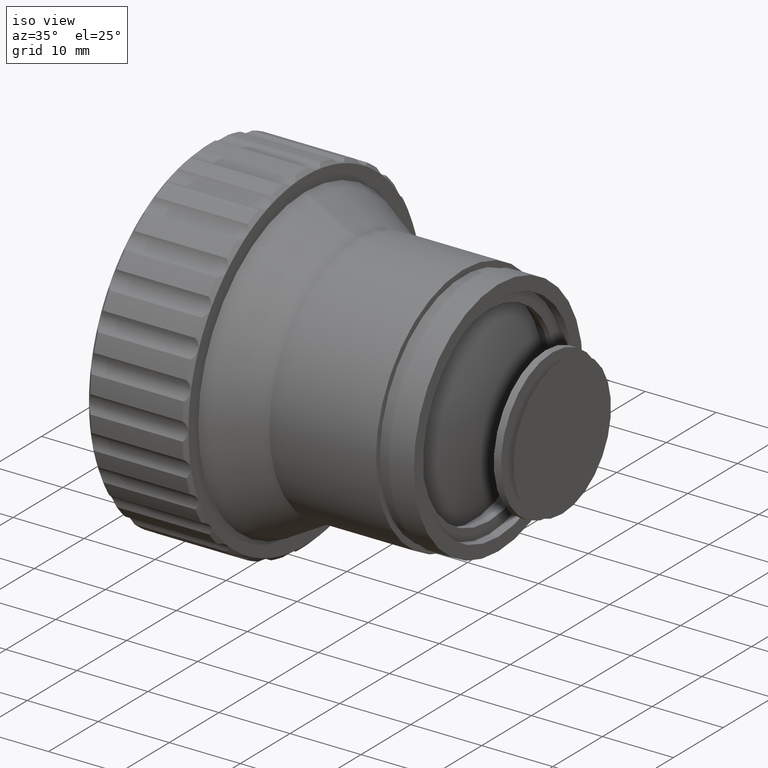
[diagram: clean part render]
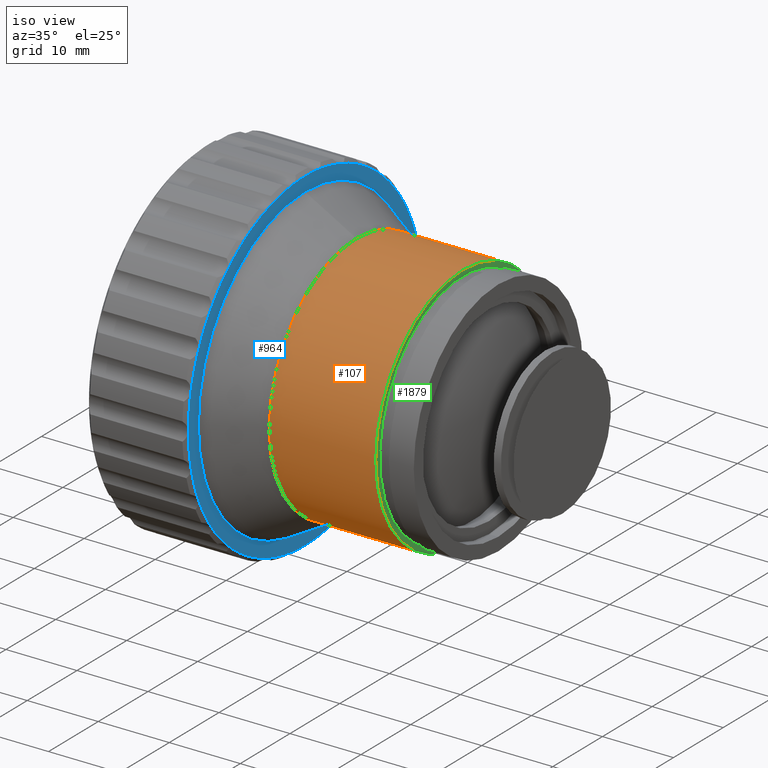
[diagram: same view with three faces highlighted in distinct colors, each labeled with its STEP entity id]
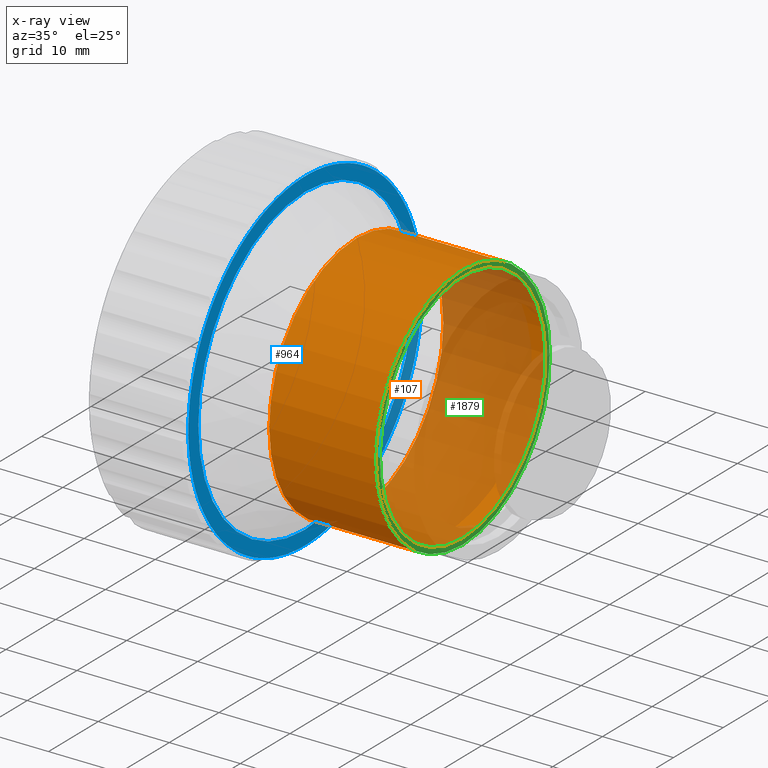
[diagram: x-ray of the same camera — body ghosted, the three highlighted faces saturated]
A machine part, iso view with three faces highlighted in distinct colors.
The next image is the same camera in x-ray (body ghosted, the three faces saturated) — at least one of them is partly hidden behind the body in this view.
Their STEP definitions:

[orange] entity #107 — the highlighted cylindrical surface (bore or boss wall) has radius 17.5 mm, axis along (1, 0, 0).
#48 = DIRECTION ( 'NONE',  ( 0.000000000000000000, 0.000000000000000000, -1.000000000000000000 ) ) ;
#107 = ADVANCED_FACE ( 'NONE', ( #3614, #2193 ), #2216, .T. ) ;
#308 = ORIENTED_EDGE ( 'NONE', *, *, #2126, .T. ) ;
#545 = CARTESIAN_POINT ( 'NONE',  ( 36.33008000000000948, 0.000000000000000000, -17.49999999999999645 ) ) ;
#895 = EDGE_CURVE ( 'NONE', #2814, #2814, #1130, .T. ) ;
#932 = CIRCLE ( 'NONE', #4761, 17.49999999999999645 ) ;
#1130 = CIRCLE ( 'NONE', #3785, 17.49999999999999645 ) ;
#1219 = EDGE_LOOP ( 'NONE', ( #2340 ) ) ;
#1438 = DIRECTION ( 'NONE',  ( 0.000000000000000000, 0.000000000000000000, -1.000000000000000000 ) ) ;
#2126 = EDGE_CURVE ( 'NONE', #3839, #3839, #932, .T. ) ;
#2193 = FACE_OUTER_BOUND ( 'NONE', #3341, .T. ) ;
#2216 = CYLINDRICAL_SURFACE ( 'NONE', #3313, 17.49999999999999645 ) ;
#2340 = ORIENTED_EDGE ( 'NONE', *, *, #895, .T. ) ;
#2766 = CARTESIAN_POINT ( 'NONE',  ( 21.33008000000000948, 0.000000000000000000, -17.49999999999999645 ) ) ;
#2814 = VERTEX_POINT ( 'NONE', #545 ) ;
#2954 = CARTESIAN_POINT ( 'NONE',  ( 0.000000000000000000, 0.000000000000000000, 0.000000000000000000 ) ) ;
#3313 = AXIS2_PLACEMENT_3D ( 'NONE', #2954, #4374, #1438 ) ;
#3341 = EDGE_LOOP ( 'NONE', ( #308 ) ) ;
#3614 = FACE_OUTER_BOUND ( 'NONE', #1219, .T. ) ;
#3678 = DIRECTION ( 'NONE',  ( 1.000000000000000000, 0.000000000000000000, 0.000000000000000000 ) ) ;
#3785 = AXIS2_PLACEMENT_3D ( 'NONE', #4194, #3810, #4273 ) ;
#3810 = DIRECTION ( 'NONE',  ( -1.000000000000000000, -0.000000000000000000, -0.000000000000000000 ) ) ;
#3839 = VERTEX_POINT ( 'NONE', #2766 ) ;
#4194 = CARTESIAN_POINT ( 'NONE',  ( 36.33008000000000948, 0.000000000000000000, 0.000000000000000000 ) ) ;
#4273 = DIRECTION ( 'NONE',  ( 0.000000000000000000, 0.000000000000000000, -1.000000000000000000 ) ) ;
#4374 = DIRECTION ( 'NONE',  ( 1.000000000000000000, 0.000000000000000000, 0.000000000000000000 ) ) ;
#4485 = CARTESIAN_POINT ( 'NONE',  ( 21.33008000000000948, 0.000000000000000000, 0.000000000000000000 ) ) ;
#4761 = AXIS2_PLACEMENT_3D ( 'NONE', #4485, #3678, #48 ) ;

[blue] entity #964 — the highlighted planar face has unit normal (1, -0, 0).
#14 = CIRCLE ( 'NONE', #1707, 23.49999999999999645 ) ;
#44 = AXIS2_PLACEMENT_3D ( 'NONE', #3885, #4514, #2637 ) ;
#81 = CARTESIAN_POINT ( 'NONE',  ( 14.14115099999998293, 0.000000000000000000, 0.000000000000000000 ) ) ;
#85 = CARTESIAN_POINT ( 'NONE',  ( 14.14115099999999003, 0.000000000000000000, 0.000000000000000000 ) ) ;
#124 = AXIS2_PLACEMENT_3D ( 'NONE', #1446, #2941, #836 ) ;
#129 = EDGE_CURVE ( 'NONE', #1919, #3581, #1656, .T. ) ;
#161 = AXIS2_PLACEMENT_3D ( 'NONE', #1409, #2952, #4447 ) ;
#165 = CARTESIAN_POINT ( 'NONE',  ( 14.14115099999999003, 7.261899367811205153, -22.34982813293612125 ) ) ;
#170 = DIRECTION ( 'NONE',  ( 1.000000000000000000, -0.000000000000000000, -0.000000000000000000 ) ) ;
#301 = DIRECTION ( 'NONE',  ( 1.000000000000000000, -0.000000000000000000, -0.000000000000000000 ) ) ;
#304 = EDGE_CURVE ( 'NONE', #2469, #4337, #3073, .T. ) ;
#328 = DIRECTION ( 'NONE',  ( 0.000000000000000000, 0.000000000000000000, 1.000000000000000000 ) ) ;
#339 = VERTEX_POINT ( 'NONE', #2159 ) ;
#380 = DIRECTION ( 'NONE',  ( 0.000000000000000000, 0.000000000000000000, 1.000000000000000000 ) ) ;
#489 = ORIENTED_EDGE ( 'NONE', *, *, #1831, .T. ) ;
#494 = VERTEX_POINT ( 'NONE', #1994 ) ;
#509 = EDGE_CURVE ( 'NONE', #1267, #652, #1437, .T. ) ;
#527 = DIRECTION ( 'NONE',  ( 1.000000000000000000, -0.000000000000000000, -0.000000000000000000 ) ) ;
#528 = ORIENTED_EDGE ( 'NONE', *, *, #1527, .T. ) ;
#537 = CIRCLE ( 'NONE', #2800, 23.49999999999999289 ) ;
#606 = EDGE_CURVE ( 'NONE', #1497, #494, #3629, .T. ) ;
#624 = AXIS2_PLACEMENT_3D ( 'NONE', #978, #948, #4268 ) ;
#629 = DIRECTION ( 'NONE',  ( 0.000000000000000000, 0.000000000000000000, 1.000000000000000000 ) ) ;
#644 = CIRCLE ( 'NONE', #4468, 23.49999999999999645 ) ;
#652 = VERTEX_POINT ( 'NONE', #4541 ) ;
#655 = DIRECTION ( 'NONE',  ( 0.000000000000000000, 0.000000000000000000, 1.000000000000000000 ) ) ;
#667 = AXIS2_PLACEMENT_3D ( 'NONE', #1775, #1457, #328 ) ;
#677 = VERTEX_POINT ( 'NONE', #1511 ) ;
#706 = AXIS2_PLACEMENT_3D ( 'NONE', #4631, #3556, #2077 ) ;
#761 = EDGE_CURVE ( 'NONE', #3039, #3211, #4245, .T. ) ;
#784 = CARTESIAN_POINT ( 'NONE',  ( 14.14115099999999003, -21.46831825460104426, 9.558311112281463906 ) ) ;
#836 = DIRECTION ( 'NONE',  ( 0.000000000000000000, 0.000000000000000000, 1.000000000000000000 ) ) ;
#917 = DIRECTION ( 'NONE',  ( 0.000000000000000000, 0.000000000000000000, 1.000000000000000000 ) ) ;
#918 = ORIENTED_EDGE ( 'NONE', *, *, #3913, .T. ) ;
#948 = DIRECTION ( 'NONE',  ( 1.000000000000000000, -0.000000000000000000, -0.000000000000000000 ) ) ;
#964 = ADVANCED_FACE ( 'NONE', ( #1411, #3664 ), #2141, .T. ) ;
#972 = AXIS2_PLACEMENT_3D ( 'NONE', #1422, #4405, #1060 ) ;
#976 = AXIS2_PLACEMENT_3D ( 'NONE', #3572, #3284, #4700 ) ;
#978 = CARTESIAN_POINT ( 'NONE',  ( 14.14115099999999003, 0.000000000000000000, 0.000000000000000000 ) ) ;
#1002 = EDGE_CURVE ( 'NONE', #2022, #2087, #4237, .T. ) ;
#1016 = VERTEX_POINT ( 'NONE', #1339 ) ;
#1023 = DIRECTION ( 'NONE',  ( 0.000000000000000000, 5.329070518200751394E-15, 1.000000000000000000 ) ) ;
#1050 = CIRCLE ( 'NONE', #2847, 23.49999999999999289 ) ;
#1060 = DIRECTION ( 'NONE',  ( 0.000000000000000000, 1.776356839400250465E-15, 1.000000000000000000 ) ) ;
#1115 = EDGE_CURVE ( 'NONE', #494, #1679, #3071, .T. ) ;
#1123 = AXIS2_PLACEMENT_3D ( 'NONE', #3997, #2079, #655 ) ;
#1143 = CARTESIAN_POINT ( 'NONE',  ( 14.14115099999998648, -22.98646861724439106, 4.885924734217509169 ) ) ;
#1146 = CARTESIAN_POINT ( 'NONE',  ( 14.14115099999998471, 0.000000000000000000, 0.000000000000000000 ) ) ;
#1147 = DIRECTION ( 'NONE',  ( 0.000000000000000000, 6.217248937900876626E-15, 1.000000000000000000 ) ) ;
#1151 = CARTESIAN_POINT ( 'NONE',  ( 14.14115099999999714, 0.000000000000000000, 0.000000000000000000 ) ) ;
#1207 = CARTESIAN_POINT ( 'NONE',  ( 14.14115099999998648, 11.74999999999995381, -20.35159698893432889 ) ) ;
#1229 = DIRECTION ( 'NONE',  ( 0.000000000000000000, 0.000000000000000000, 1.000000000000000000 ) ) ;
#1230 = ORIENTED_EDGE ( 'NONE', *, *, #304, .T. ) ;
#1243 = VERTEX_POINT ( 'NONE', #1587 ) ;
#1255 = EDGE_CURVE ( 'NONE', #652, #2226, #1813, .T. ) ;
#1259 = VERTEX_POINT ( 'NONE', #3628 ) ;
#1267 = VERTEX_POINT ( 'NONE', #4036 ) ;
#1271 = AXIS2_PLACEMENT_3D ( 'NONE', #3265, #2526, #4063 ) ;
#1277 = AXIS2_PLACEMENT_3D ( 'NONE', #4703, #4728, #2396 ) ;
#1299 = AXIS2_PLACEMENT_3D ( 'NONE', #1318, #3156, #2017 ) ;
#1314 = VERTEX_POINT ( 'NONE', #2894 ) ;
#1318 = CARTESIAN_POINT ( 'NONE',  ( 14.14115099999998648, 0.000000000000000000, 0.000000000000000000 ) ) ;
#1333 = CARTESIAN_POINT ( 'NONE',  ( 14.14115099999998826, 0.000000000000000000, 0.000000000000000000 ) ) ;
#1339 = CARTESIAN_POINT ( 'NONE',  ( 14.14115099999998648, 2.456418886789781375, -23.37126454115442797 ) ) ;
#1373 = ORIENTED_EDGE ( 'NONE', *, *, #1960, .T. ) ;
#1376 = EDGE_CURVE ( 'NONE', #1243, #1243, #2833, .T. ) ;
#1401 = AXIS2_PLACEMENT_3D ( 'NONE', #2002, #170, #3219 ) ;
#1409 = CARTESIAN_POINT ( 'NONE',  ( 14.14115099999998826, 0.000000000000000000, 0.000000000000000000 ) ) ;
#1411 = FACE_BOUND ( 'NONE', #2170, .T. ) ;
#1416 = CARTESIAN_POINT ( 'NONE',  ( 14.14115099999999003, 15.72456924943337064, 17.46390339871857122 ) ) ;
#1422 = CARTESIAN_POINT ( 'NONE',  ( 14.14115099999998826, 0.000000000000000000, 0.000000000000000000 ) ) ;
#1437 = CIRCLE ( 'NONE', #3782, 23.49999999999998934 ) ;
#1446 = CARTESIAN_POINT ( 'NONE',  ( 14.14115099999998826, 0.000000000000000000, 0.000000000000000000 ) ) ;
#1457 = DIRECTION ( 'NONE',  ( 1.000000000000000000, -0.000000000000000000, -0.000000000000000000 ) ) ;
#1459 = DIRECTION ( 'NONE',  ( 0.000000000000000000, 2.664535259100376091E-15, 1.000000000000000000 ) ) ;
#1475 = CIRCLE ( 'NONE', #4516, 23.50000000000000000 ) ;
#1488 = CIRCLE ( 'NONE', #161, 23.49999999999999289 ) ;
#1497 = VERTEX_POINT ( 'NONE', #1944 ) ;
#1511 = CARTESIAN_POINT ( 'NONE',  ( 14.14115099999998648, -15.72456924943302425, 17.46390339871889452 ) ) ;
#1516 = CIRCLE ( 'NONE', #667, 23.49999999999999289 ) ;
#1527 = EDGE_CURVE ( 'NONE', #4337, #1314, #2154, .T. ) ;
#1536 = ORIENTED_EDGE ( 'NONE', *, *, #4419, .T. ) ;
#1555 = CARTESIAN_POINT ( 'NONE',  ( 14.14115099999998648, 22.98646861724448698, 4.885924734217049981 ) ) ;
#1587 = CARTESIAN_POINT ( 'NONE',  ( 14.14115099999999714, 0.000000000000000000, 21.50000000000000000 ) ) ;
#1651 = ORIENTED_EDGE ( 'NONE', *, *, #2574, .T. ) ;
#1656 = CIRCLE ( 'NONE', #3935, 23.49999999999999289 ) ;
#1661 = CIRCLE ( 'NONE', #3851, 23.49999999999999289 ) ;
#1679 = VERTEX_POINT ( 'NONE', #1416 ) ;
#1707 = AXIS2_PLACEMENT_3D ( 'NONE', #3580, #3972, #629 ) ;
#1747 = CARTESIAN_POINT ( 'NONE',  ( 14.14115099999998293, 0.000000000000000000, 0.000000000000000000 ) ) ;
#1775 = CARTESIAN_POINT ( 'NONE',  ( 14.14115099999999003, 0.000000000000000000, 0.000000000000000000 ) ) ;
#1776 = CARTESIAN_POINT ( 'NONE',  ( 14.14115099999998826, 0.000000000000000000, 0.000000000000000000 ) ) ;
#1808 = ORIENTED_EDGE ( 'NONE', *, *, #761, .T. ) ;
#1813 = CIRCLE ( 'NONE', #1271, 23.49999999999999289 ) ;
#1828 = CARTESIAN_POINT ( 'NONE',  ( 14.14115099999999003, 0.000000000000000000, 0.000000000000000000 ) ) ;
#1831 = EDGE_CURVE ( 'NONE', #1259, #3039, #2393, .T. ) ;
#1839 = CARTESIAN_POINT ( 'NONE',  ( 14.14115099999999003, 7.261899367811497363, 22.34982813293602533 ) ) ;
#1840 = CARTESIAN_POINT ( 'NONE',  ( 14.14115099999998826, -19.01189936781115009, 13.81295342887326960 ) ) ;
#1841 = VERTEX_POINT ( 'NONE', #784 ) ;
#1858 = AXIS2_PLACEMENT_3D ( 'NONE', #3192, #3223, #4239 ) ;
#1876 = EDGE_CURVE ( 'NONE', #1973, #1841, #3736, .T. ) ;
#1919 = VERTEX_POINT ( 'NONE', #3530 ) ;
#1936 = CIRCLE ( 'NONE', #1401, 23.49999999999999289 ) ;
#1944 = CARTESIAN_POINT ( 'NONE',  ( 14.14115099999998648, 21.46831825460123611, 9.558311112281035804 ) ) ;
#1957 = EDGE_CURVE ( 'NONE', #4651, #1016, #2963, .T. ) ;
#1960 = EDGE_CURVE ( 'NONE', #677, #1973, #14, .T. ) ;
#1973 = VERTEX_POINT ( 'NONE', #1840 ) ;
#1976 = CARTESIAN_POINT ( 'NONE',  ( 14.14115099999998648, 21.46831825460110821, -9.558311112281321797 ) ) ;
#1982 = CARTESIAN_POINT ( 'NONE',  ( 14.14115099999999003, 0.000000000000000000, 0.000000000000000000 ) ) ;
#1994 = CARTESIAN_POINT ( 'NONE',  ( 14.14115099999999003, 19.01189936781142720, 13.81295342887288058 ) ) ;
#2002 = CARTESIAN_POINT ( 'NONE',  ( 14.14115099999999003, 0.000000000000000000, 0.000000000000000000 ) ) ;
#2017 = DIRECTION ( 'NONE',  ( 0.000000000000000000, 0.000000000000000000, 1.000000000000000000 ) ) ;
#2022 = VERTEX_POINT ( 'NONE', #2971 ) ;
#2077 = DIRECTION ( 'NONE',  ( 0.000000000000000000, 7.105427357601001859E-15, 1.000000000000000000 ) ) ;
#2079 = DIRECTION ( 'NONE',  ( 1.000000000000000000, -0.000000000000000000, -0.000000000000000000 ) ) ;
#2080 = DIRECTION ( 'NONE',  ( 1.000000000000000000, -0.000000000000000000, -0.000000000000000000 ) ) ;
#2087 = VERTEX_POINT ( 'NONE', #4491 ) ;
#2106 = ORIENTED_EDGE ( 'NONE', *, *, #3018, .T. ) ;
#2117 = EDGE_CURVE ( 'NONE', #1841, #3285, #3818, .T. ) ;
#2141 = PLANE ( 'NONE',  #4795 ) ;
#2154 = CIRCLE ( 'NONE', #1299, 23.50000000000000000 ) ;
#2159 = CARTESIAN_POINT ( 'NONE',  ( 14.14115099999998648, 23.49999999999999289, 1.033295776267996500E-15 ) ) ;
#2160 = DIRECTION ( 'NONE',  ( 1.000000000000000000, -0.000000000000000000, -0.000000000000000000 ) ) ;
#2170 = EDGE_LOOP ( 'NONE', ( #3157 ) ) ;
#2217 = CARTESIAN_POINT ( 'NONE',  ( 14.14115099999998648, 0.000000000000000000, 0.000000000000000000 ) ) ;
#2226 = VERTEX_POINT ( 'NONE', #4551 ) ;
#2251 = CARTESIAN_POINT ( 'NONE',  ( 14.14115099999999003, 0.000000000000000000, 0.000000000000000000 ) ) ;
#2267 = VERTEX_POINT ( 'NONE', #2346 ) ;
#2289 = ORIENTED_EDGE ( 'NONE', *, *, #3506, .T. ) ;
#2330 = EDGE_CURVE ( 'NONE', #2087, #2267, #3627, .T. ) ;
#2346 = CARTESIAN_POINT ( 'NONE',  ( 14.14115099999998826, -11.74999999999980993, 20.35159698893441416 ) ) ;
#2380 = DIRECTION ( 'NONE',  ( 1.000000000000000000, -0.000000000000000000, -0.000000000000000000 ) ) ;
#2393 = CIRCLE ( 'NONE', #3651, 23.49999999999999645 ) ;
#2396 = DIRECTION ( 'NONE',  ( 0.000000000000000000, 0.000000000000000000, 1.000000000000000000 ) ) ;
#2404 = DIRECTION ( 'NONE',  ( 0.000000000000000000, 5.329070518200752183E-15, 1.000000000000000000 ) ) ;
#2453 = EDGE_LOOP ( 'NONE', ( #4732, #2289, #3996, #2106, #4211, #3590, #3256, #2535, #3531, #3836, #4336, #3735, #4632, #1373, #4165, #3947, #1536, #3291, #2762, #3992, #918, #489, #1808, #3046, #3658, #1651, #1230, #528, #4807, #4264 ) ) ;
#2459 = CARTESIAN_POINT ( 'NONE',  ( 14.14115099999998826, 0.000000000000000000, 0.000000000000000000 ) ) ;
#2461 = DIRECTION ( 'NONE',  ( 1.000000000000000000, -0.000000000000000000, 0.000000000000000000 ) ) ;
#2469 = VERTEX_POINT ( 'NONE', #165 ) ;
#2515 = CARTESIAN_POINT ( 'NONE',  ( 14.14115099999999714, 23.99999999999999645, 0.000000000000000000 ) ) ;
#2526 = DIRECTION ( 'NONE',  ( 1.000000000000000000, -0.000000000000000000, -0.000000000000000000 ) ) ;
#2535 = ORIENTED_EDGE ( 'NONE', *, *, #129, .T. ) ;
#2537 = CARTESIAN_POINT ( 'NONE',  ( 14.14115099999998648, -2.456418886789935030, -23.37126454115441021 ) ) ;
#2540 = CIRCLE ( 'NONE', #3392, 23.49999999999999289 ) ;
#2547 = EDGE_CURVE ( 'NONE', #1314, #3190, #1661, .T. ) ;
#2552 = EDGE_CURVE ( 'NONE', #3581, #3121, #2842, .T. ) ;
#2570 = DIRECTION ( 'NONE',  ( 0.000000000000000000, 8.881784197001252323E-16, 1.000000000000000000 ) ) ;
#2574 = EDGE_CURVE ( 'NONE', #1016, #2469, #3240, .T. ) ;
#2577 = AXIS2_PLACEMENT_3D ( 'NONE', #2251, #4508, #2630 ) ;
#2591 = CIRCLE ( 'NONE', #3830, 23.50000000000000000 ) ;
#2608 = AXIS2_PLACEMENT_3D ( 'NONE', #1151, #3796, #380 ) ;
#2616 = DIRECTION ( 'NONE',  ( 1.000000000000000000, -0.000000000000000000, -0.000000000000000000 ) ) ;
#2622 = DIRECTION ( 'NONE',  ( 1.000000000000000000, -0.000000000000000000, -0.000000000000000000 ) ) ;
#2630 = DIRECTION ( 'NONE',  ( 0.000000000000000000, 1.776356839400250465E-15, 1.000000000000000000 ) ) ;
#2637 = DIRECTION ( 'NONE',  ( 0.000000000000000000, 0.000000000000000000, 1.000000000000000000 ) ) ;
#2639 = DIRECTION ( 'NONE',  ( 1.000000000000000000, -0.000000000000000000, -0.000000000000000000 ) ) ;
#2719 = DIRECTION ( 'NONE',  ( 1.000000000000000000, -0.000000000000000000, -0.000000000000000000 ) ) ;
#2735 = AXIS2_PLACEMENT_3D ( 'NONE', #2459, #3954, #3253 ) ;
#2762 = ORIENTED_EDGE ( 'NONE', *, *, #509, .T. ) ;
#2763 = CARTESIAN_POINT ( 'NONE',  ( 14.14115099999999181, 0.000000000000000000, 0.000000000000000000 ) ) ;
#2800 = AXIS2_PLACEMENT_3D ( 'NONE', #1982, #2080, #2404 ) ;
#2833 = CIRCLE ( 'NONE', #2608, 21.50000000000000000 ) ;
#2842 = CIRCLE ( 'NONE', #972, 23.49999999999999289 ) ;
#2847 = AXIS2_PLACEMENT_3D ( 'NONE', #85, #3420, #3056 ) ;
#2872 = VERTEX_POINT ( 'NONE', #4818 ) ;
#2894 = CARTESIAN_POINT ( 'NONE',  ( 14.14115099999998826, 15.72456924943312728, -17.46390339871879149 ) ) ;
#2905 = EDGE_CURVE ( 'NONE', #2267, #677, #644, .T. ) ;
#2941 = DIRECTION ( 'NONE',  ( 1.000000000000000000, -0.000000000000000000, -0.000000000000000000 ) ) ;
#2952 = DIRECTION ( 'NONE',  ( 1.000000000000000000, -0.000000000000000000, -0.000000000000000000 ) ) ;
#2960 = CIRCLE ( 'NONE', #2735, 23.49999999999999645 ) ;
#2963 = CIRCLE ( 'NONE', #706, 23.50000000000000000 ) ;
#2971 = CARTESIAN_POINT ( 'NONE',  ( 14.14115099999999003, -2.456418886789625944, 23.37126454115444218 ) ) ;
#3018 = EDGE_CURVE ( 'NONE', #3923, #1497, #2591, .T. ) ;
#3039 = VERTEX_POINT ( 'NONE', #3098 ) ;
#3046 = ORIENTED_EDGE ( 'NONE', *, *, #4182, .T. ) ;
#3056 = DIRECTION ( 'NONE',  ( 0.000000000000000000, 0.000000000000000000, 1.000000000000000000 ) ) ;
#3071 = CIRCLE ( 'NONE', #1123, 23.49999999999998934 ) ;
#3073 = CIRCLE ( 'NONE', #44, 23.49999999999999645 ) ;
#3098 = CARTESIAN_POINT ( 'NONE',  ( 14.14115099999998648, -11.75000000000009415, -20.35159698893425428 ) ) ;
#3121 = VERTEX_POINT ( 'NONE', #3587 ) ;
#3136 = EDGE_CURVE ( 'NONE', #2872, #1267, #3977, .T. ) ;
#3156 = DIRECTION ( 'NONE',  ( 1.000000000000000000, -0.000000000000000000, -0.000000000000000000 ) ) ;
#3157 = ORIENTED_EDGE ( 'NONE', *, *, #1376, .F. ) ;
#3171 = CARTESIAN_POINT ( 'NONE',  ( 14.14115099999999003, 19.01189936781124246, -13.81295342887313815 ) ) ;
#3181 = AXIS2_PLACEMENT_3D ( 'NONE', #1333, #527, #917 ) ;
#3190 = VERTEX_POINT ( 'NONE', #3171 ) ;
#3192 = CARTESIAN_POINT ( 'NONE',  ( 14.14115099999999003, 0.000000000000000000, 0.000000000000000000 ) ) ;
#3198 = EDGE_CURVE ( 'NONE', #3121, #2022, #2960, .T. ) ;
#3211 = VERTEX_POINT ( 'NONE', #3299 ) ;
#3219 = DIRECTION ( 'NONE',  ( 0.000000000000000000, 4.440892098500626162E-15, 1.000000000000000000 ) ) ;
#3223 = DIRECTION ( 'NONE',  ( 1.000000000000000000, -0.000000000000000000, -0.000000000000000000 ) ) ;
#3233 = AXIS2_PLACEMENT_3D ( 'NONE', #1776, #301, #3278 ) ;
#3240 = CIRCLE ( 'NONE', #124, 23.49999999999999645 ) ;
#3253 = DIRECTION ( 'NONE',  ( 0.000000000000000000, 0.000000000000000000, 1.000000000000000000 ) ) ;
#3256 = ORIENTED_EDGE ( 'NONE', *, *, #4216, .T. ) ;
#3265 = CARTESIAN_POINT ( 'NONE',  ( 14.14115099999999003, 0.000000000000000000, 0.000000000000000000 ) ) ;
#3278 = DIRECTION ( 'NONE',  ( 0.000000000000000000, 0.000000000000000000, 1.000000000000000000 ) ) ;
#3284 = DIRECTION ( 'NONE',  ( 1.000000000000000000, -0.000000000000000000, -0.000000000000000000 ) ) ;
#3285 = VERTEX_POINT ( 'NONE', #1143 ) ;
#3291 = ORIENTED_EDGE ( 'NONE', *, *, #3136, .T. ) ;
#3299 = CARTESIAN_POINT ( 'NONE',  ( 14.14115099999999003, -7.261899367811352590, -22.34982813293607506 ) ) ;
#3327 = DIRECTION ( 'NONE',  ( 1.000000000000000000, -0.000000000000000000, -0.000000000000000000 ) ) ;
#3332 = CARTESIAN_POINT ( 'NONE',  ( 14.14115099999999003, 0.000000000000000000, 0.000000000000000000 ) ) ;
#3342 = EDGE_CURVE ( 'NONE', #3190, #3802, #1488, .T. ) ;
#3345 = DIRECTION ( 'NONE',  ( 0.000000000000000000, -6.217248937900876626E-15, 1.000000000000000000 ) ) ;
#3352 = CIRCLE ( 'NONE', #1858, 23.49999999999999289 ) ;
#3392 = AXIS2_PLACEMENT_3D ( 'NONE', #4371, #2616, #3345 ) ;
#3420 = DIRECTION ( 'NONE',  ( 1.000000000000000000, -0.000000000000000000, -0.000000000000000000 ) ) ;
#3506 = EDGE_CURVE ( 'NONE', #4412, #339, #1936, .T. ) ;
#3530 = CARTESIAN_POINT ( 'NONE',  ( 14.14115099999998648, 11.75000000000023626, 20.35159698893416191 ) ) ;
#3531 = ORIENTED_EDGE ( 'NONE', *, *, #2552, .T. ) ;
#3556 = DIRECTION ( 'NONE',  ( 1.000000000000000000, -0.000000000000000000, -0.000000000000000000 ) ) ;
#3572 = CARTESIAN_POINT ( 'NONE',  ( 14.14115099999999181, 0.000000000000000000, 0.000000000000000000 ) ) ;
#3580 = CARTESIAN_POINT ( 'NONE',  ( 14.14115099999998826, 0.000000000000000000, 0.000000000000000000 ) ) ;
#3581 = VERTEX_POINT ( 'NONE', #1839 ) ;
#3587 = CARTESIAN_POINT ( 'NONE',  ( 14.14115099999998648, 2.456418886790093570, 23.37126454115439600 ) ) ;
#3590 = ORIENTED_EDGE ( 'NONE', *, *, #1115, .T. ) ;
#3627 = CIRCLE ( 'NONE', #1277, 23.49999999999999289 ) ;
#3628 = CARTESIAN_POINT ( 'NONE',  ( 14.14115099999998648, -15.72456924943324275, -17.46390339871869202 ) ) ;
#3629 = CIRCLE ( 'NONE', #976, 23.49999999999998934 ) ;
#3651 = AXIS2_PLACEMENT_3D ( 'NONE', #1146, #2639, #4127 ) ;
#3658 = ORIENTED_EDGE ( 'NONE', *, *, #1957, .T. ) ;
#3664 = FACE_OUTER_BOUND ( 'NONE', #2453, .T. ) ;
#3673 = DIRECTION ( 'NONE',  ( 1.000000000000000000, -0.000000000000000000, -0.000000000000000000 ) ) ;
#3735 = ORIENTED_EDGE ( 'NONE', *, *, #2330, .T. ) ;
#3736 = CIRCLE ( 'NONE', #3181, 23.49999999999999645 ) ;
#3782 = AXIS2_PLACEMENT_3D ( 'NONE', #2763, #2719, #4650 ) ;
#3796 = DIRECTION ( 'NONE',  ( 1.000000000000000000, -0.000000000000000000, -0.000000000000000000 ) ) ;
#3802 = VERTEX_POINT ( 'NONE', #1976 ) ;
#3818 = CIRCLE ( 'NONE', #2577, 23.49999999999999289 ) ;
#3830 = AXIS2_PLACEMENT_3D ( 'NONE', #81, #2380, #1229 ) ;
#3836 = ORIENTED_EDGE ( 'NONE', *, *, #3198, .T. ) ;
#3851 = AXIS2_PLACEMENT_3D ( 'NONE', #3332, #3673, #4802 ) ;
#3885 = CARTESIAN_POINT ( 'NONE',  ( 14.14115099999998826, 0.000000000000000000, 0.000000000000000000 ) ) ;
#3903 = CARTESIAN_POINT ( 'NONE',  ( 14.14115099999998648, 22.98646861724442658, -4.885924734217354626 ) ) ;
#3913 = EDGE_CURVE ( 'NONE', #2226, #1259, #1050, .T. ) ;
#3923 = VERTEX_POINT ( 'NONE', #1555 ) ;
#3935 = AXIS2_PLACEMENT_3D ( 'NONE', #1828, #3327, #1459 ) ;
#3947 = ORIENTED_EDGE ( 'NONE', *, *, #2117, .T. ) ;
#3954 = DIRECTION ( 'NONE',  ( 1.000000000000000000, -0.000000000000000000, -0.000000000000000000 ) ) ;
#3972 = DIRECTION ( 'NONE',  ( 1.000000000000000000, -0.000000000000000000, -0.000000000000000000 ) ) ;
#3977 = CIRCLE ( 'NONE', #624, 23.49999999999999289 ) ;
#3992 = ORIENTED_EDGE ( 'NONE', *, *, #1255, .T. ) ;
#3996 = ORIENTED_EDGE ( 'NONE', *, *, #4423, .T. ) ;
#3997 = CARTESIAN_POINT ( 'NONE',  ( 14.14115099999999181, 0.000000000000000000, 0.000000000000000000 ) ) ;
#4036 = CARTESIAN_POINT ( 'NONE',  ( 14.14115099999999003, -22.98646861724445145, -4.885924734217204524 ) ) ;
#4063 = DIRECTION ( 'NONE',  ( 0.000000000000000000, -1.776356839400250465E-15, 1.000000000000000000 ) ) ;
#4127 = DIRECTION ( 'NONE',  ( 0.000000000000000000, 0.000000000000000000, 1.000000000000000000 ) ) ;
#4165 = ORIENTED_EDGE ( 'NONE', *, *, #1876, .T. ) ;
#4182 = EDGE_CURVE ( 'NONE', #3211, #4651, #1516, .T. ) ;
#4211 = ORIENTED_EDGE ( 'NONE', *, *, #606, .T. ) ;
#4216 = EDGE_CURVE ( 'NONE', #1679, #1919, #2540, .T. ) ;
#4237 = CIRCLE ( 'NONE', #3233, 23.49999999999999645 ) ;
#4239 = DIRECTION ( 'NONE',  ( 0.000000000000000000, 0.000000000000000000, 1.000000000000000000 ) ) ;
#4245 = CIRCLE ( 'NONE', #4325, 23.49999999999999645 ) ;
#4264 = ORIENTED_EDGE ( 'NONE', *, *, #3342, .T. ) ;
#4268 = DIRECTION ( 'NONE',  ( 0.000000000000000000, 0.000000000000000000, 1.000000000000000000 ) ) ;
#4325 = AXIS2_PLACEMENT_3D ( 'NONE', #4499, #2622, #1147 ) ;
#4336 = ORIENTED_EDGE ( 'NONE', *, *, #1002, .T. ) ;
#4337 = VERTEX_POINT ( 'NONE', #1207 ) ;
#4371 = CARTESIAN_POINT ( 'NONE',  ( 14.14115099999999003, 0.000000000000000000, 0.000000000000000000 ) ) ;
#4396 = DIRECTION ( 'NONE',  ( 0.000000000000000000, 0.000000000000000000, -1.000000000000000000 ) ) ;
#4405 = DIRECTION ( 'NONE',  ( 1.000000000000000000, -0.000000000000000000, -0.000000000000000000 ) ) ;
#4412 = VERTEX_POINT ( 'NONE', #3903 ) ;
#4419 = EDGE_CURVE ( 'NONE', #3285, #2872, #3352, .T. ) ;
#4423 = EDGE_CURVE ( 'NONE', #339, #3923, #537, .T. ) ;
#4447 = DIRECTION ( 'NONE',  ( 0.000000000000000000, -1.776356839400250465E-14, 1.000000000000000000 ) ) ;
#4452 = DIRECTION ( 'NONE',  ( 1.000000000000000000, -0.000000000000000000, -0.000000000000000000 ) ) ;
#4468 = AXIS2_PLACEMENT_3D ( 'NONE', #2217, #4452, #2570 ) ;
#4491 = CARTESIAN_POINT ( 'NONE',  ( 14.14115099999999003, -7.261899367811047945, 22.34982813293617099 ) ) ;
#4499 = CARTESIAN_POINT ( 'NONE',  ( 14.14115099999998826, 0.000000000000000000, 0.000000000000000000 ) ) ;
#4508 = DIRECTION ( 'NONE',  ( 1.000000000000000000, -0.000000000000000000, -0.000000000000000000 ) ) ;
#4514 = DIRECTION ( 'NONE',  ( 1.000000000000000000, -0.000000000000000000, -0.000000000000000000 ) ) ;
#4516 = AXIS2_PLACEMENT_3D ( 'NONE', #1747, #2160, #1023 ) ;
#4525 = EDGE_CURVE ( 'NONE', #3802, #4412, #1475, .T. ) ;
#4541 = CARTESIAN_POINT ( 'NONE',  ( 14.14115099999999003, -21.46831825460116505, -9.558311112281188571 ) ) ;
#4551 = CARTESIAN_POINT ( 'NONE',  ( 14.14115099999999003, -19.01189936781132772, -13.81295342887301736 ) ) ;
#4631 = CARTESIAN_POINT ( 'NONE',  ( 14.14115099999998293, 0.000000000000000000, 0.000000000000000000 ) ) ;
#4632 = ORIENTED_EDGE ( 'NONE', *, *, #2905, .T. ) ;
#4650 = DIRECTION ( 'NONE',  ( 0.000000000000000000, 0.000000000000000000, 1.000000000000000000 ) ) ;
#4651 = VERTEX_POINT ( 'NONE', #2537 ) ;
#4700 = DIRECTION ( 'NONE',  ( 0.000000000000000000, 0.000000000000000000, 1.000000000000000000 ) ) ;
#4703 = CARTESIAN_POINT ( 'NONE',  ( 14.14115099999999003, 0.000000000000000000, 0.000000000000000000 ) ) ;
#4728 = DIRECTION ( 'NONE',  ( 1.000000000000000000, -0.000000000000000000, -0.000000000000000000 ) ) ;
#4732 = ORIENTED_EDGE ( 'NONE', *, *, #4525, .T. ) ;
#4795 = AXIS2_PLACEMENT_3D ( 'NONE', #2515, #2461, #4396 ) ;
#4802 = DIRECTION ( 'NONE',  ( 0.000000000000000000, 8.881784197001252323E-15, 1.000000000000000000 ) ) ;
#4807 = ORIENTED_EDGE ( 'NONE', *, *, #2547, .T. ) ;
#4818 = CARTESIAN_POINT ( 'NONE',  ( 14.14115099999998648, -23.49999999999999289, -3.222351929743885301E-15 ) ) ;

[green] entity #1879 — the highlighted planar face has unit normal (1, -0, 0).
#519 = EDGE_LOOP ( 'NONE', ( #2295 ) ) ;
#545 = CARTESIAN_POINT ( 'NONE',  ( 36.33008000000000948, 0.000000000000000000, -17.49999999999999645 ) ) ;
#605 = EDGE_CURVE ( 'NONE', #2745, #2745, #1199, .T. ) ;
#895 = EDGE_CURVE ( 'NONE', #2814, #2814, #1130, .T. ) ;
#901 = EDGE_LOOP ( 'NONE', ( #2359 ) ) ;
#1130 = CIRCLE ( 'NONE', #3785, 17.49999999999999645 ) ;
#1199 = CIRCLE ( 'NONE', #2764, 16.69999999999999218 ) ;
#1270 = CARTESIAN_POINT ( 'NONE',  ( 36.33008000000000948, 0.000000000000000000, -16.69999999999999218 ) ) ;
#1358 = CARTESIAN_POINT ( 'NONE',  ( 36.33008000000000948, 16.69999999999999574, 0.000000000000000000 ) ) ;
#1879 = ADVANCED_FACE ( 'NONE', ( #3900, #2821 ), #2853, .T. ) ;
#2056 = DIRECTION ( 'NONE',  ( 1.000000000000000000, -0.000000000000000000, 0.000000000000000000 ) ) ;
#2295 = ORIENTED_EDGE ( 'NONE', *, *, #605, .T. ) ;
#2310 = AXIS2_PLACEMENT_3D ( 'NONE', #1358, #2056, #3926 ) ;
#2359 = ORIENTED_EDGE ( 'NONE', *, *, #895, .F. ) ;
#2745 = VERTEX_POINT ( 'NONE', #1270 ) ;
#2764 = AXIS2_PLACEMENT_3D ( 'NONE', #4032, #4378, #2938 ) ;
#2814 = VERTEX_POINT ( 'NONE', #545 ) ;
#2821 = FACE_OUTER_BOUND ( 'NONE', #901, .T. ) ;
#2853 = PLANE ( 'NONE',  #2310 ) ;
#2938 = DIRECTION ( 'NONE',  ( 0.000000000000000000, 0.000000000000000000, -1.000000000000000000 ) ) ;
#3785 = AXIS2_PLACEMENT_3D ( 'NONE', #4194, #3810, #4273 ) ;
#3810 = DIRECTION ( 'NONE',  ( -1.000000000000000000, -0.000000000000000000, -0.000000000000000000 ) ) ;
#3900 = FACE_BOUND ( 'NONE', #519, .T. ) ;
#3926 = DIRECTION ( 'NONE',  ( 0.000000000000000000, 0.000000000000000000, -1.000000000000000000 ) ) ;
#4032 = CARTESIAN_POINT ( 'NONE',  ( 36.33008000000000948, 0.000000000000000000, 0.000000000000000000 ) ) ;
#4194 = CARTESIAN_POINT ( 'NONE',  ( 36.33008000000000948, 0.000000000000000000, 0.000000000000000000 ) ) ;
#4273 = DIRECTION ( 'NONE',  ( 0.000000000000000000, 0.000000000000000000, -1.000000000000000000 ) ) ;
#4378 = DIRECTION ( 'NONE',  ( -1.000000000000000000, -0.000000000000000000, -0.000000000000000000 ) ) ;